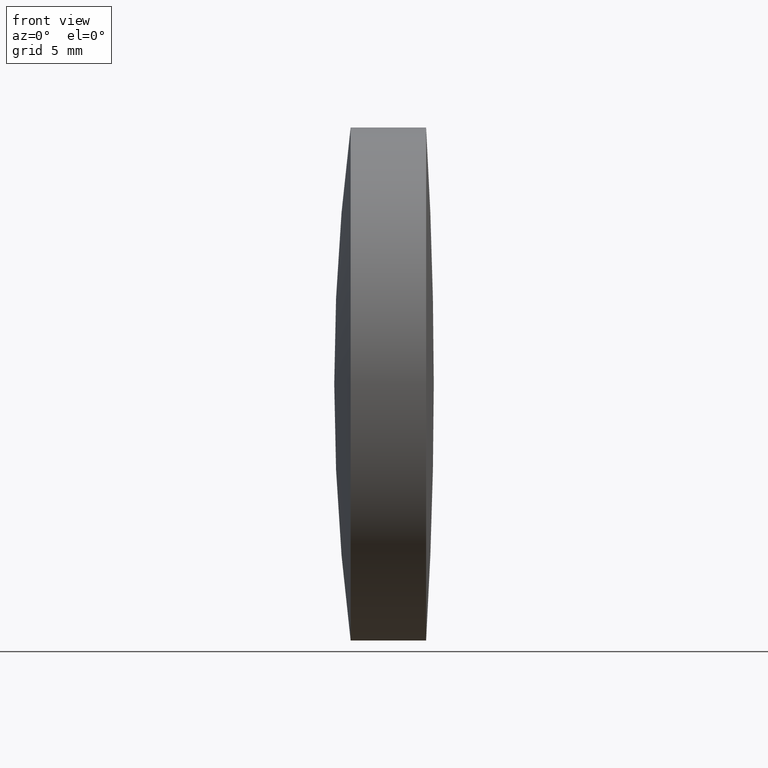
[diagram: clean part render]
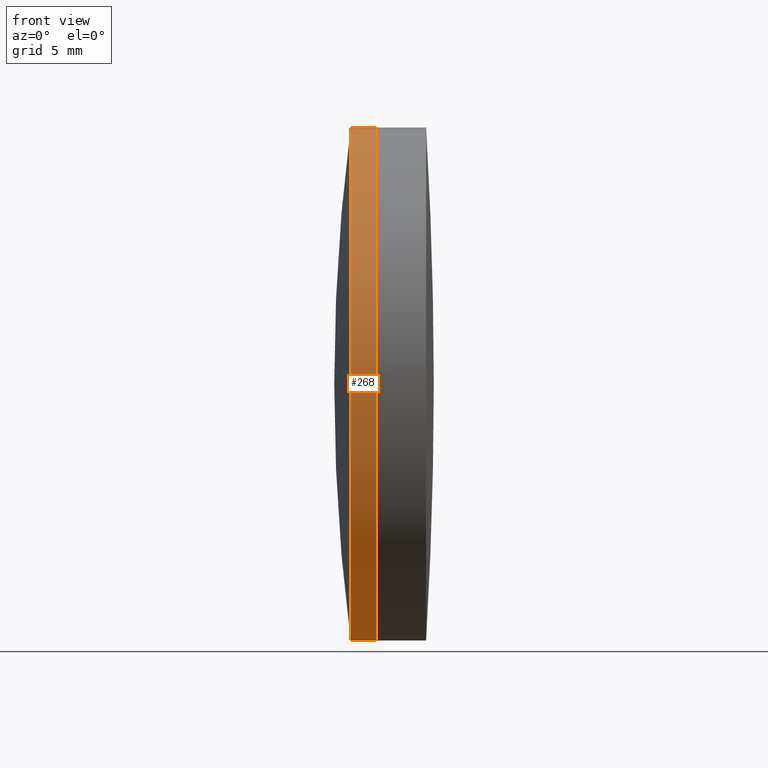
[diagram: same view with one face highlighted and labeled with its STEP entity id]
A machine part, front view. The second image highlights one B-rep face of the part: STEP entity #268.
In plain terms, the highlighted cylindrical surface (partial cylindrical patch) has radius 15.75 mm, axis along (-1, -0, -0).
Its self-contained STEP definition (entity closure, byte-faithful):
#2 = VERTEX_POINT ( 'NONE', #147 ) ;
#12 = LINE ( 'NONE', #311, #223 ) ;
#16 = DIRECTION ( 'NONE',  ( 0.0000000000000000000, 0.0000000000000000000, 1.000000000000000000 ) ) ;
#18 = EDGE_CURVE ( 'NONE', #2, #87, #149, .T. ) ;
#19 = DIRECTION ( 'NONE',  ( -1.000000000000000000, -0.0000000000000000000, -0.0000000000000000000 ) ) ;
#33 = AXIS2_PLACEMENT_3D ( 'NONE', #191, #346, #158 ) ;
#45 = ORIENTED_EDGE ( 'NONE', *, *, #339, .T. ) ;
#67 = DIRECTION ( 'NONE',  ( -1.000000000000000000, -0.0000000000000000000, -0.0000000000000000000 ) ) ;
#72 = ORIENTED_EDGE ( 'NONE', *, *, #137, .T. ) ;
#74 = CIRCLE ( 'NONE', #33, 15.75000000000000000 ) ;
#87 = VERTEX_POINT ( 'NONE', #140 ) ;
#93 = DIRECTION ( 'NONE',  ( -1.000000000000000000, -0.0000000000000000000, -0.0000000000000000000 ) ) ;
#97 = ORIENTED_EDGE ( 'NONE', *, *, #299, .F. ) ;
#101 = CARTESIAN_POINT ( 'NONE',  ( 260.6997343511442300, 0.0000000000000000000, 15.75000000000000000 ) ) ;
#104 = FACE_OUTER_BOUND ( 'NONE', #109, .T. ) ;
#108 = VECTOR ( 'NONE', #67, 1000.000000000000000 ) ;
#109 = EDGE_LOOP ( 'NONE', ( #97, #45, #72, #244 ) ) ;
#114 = VERTEX_POINT ( 'NONE', #101 ) ;
#131 = AXIS2_PLACEMENT_3D ( 'NONE', #209, #19, #16 ) ;
#137 = EDGE_CURVE ( 'NONE', #114, #87, #212, .T. ) ;
#140 = CARTESIAN_POINT ( 'NONE',  ( 259.1360932977123100, -1.928818708657084900E-015, 15.75000000000002800 ) ) ;
#147 = CARTESIAN_POINT ( 'NONE',  ( 259.1360932977123100, 0.0000000000000000000, -15.75000000000002800 ) ) ;
#149 = CIRCLE ( 'NONE', #131, 15.75000000000000000 ) ;
#158 = DIRECTION ( 'NONE',  ( 0.0000000000000000000, 0.0000000000000000000, 1.000000000000000000 ) ) ;
#172 = CARTESIAN_POINT ( 'NONE',  ( 260.6997343511442300, 1.928818708657081300E-015, -15.75000000000000000 ) ) ;
#191 = CARTESIAN_POINT ( 'NONE',  ( 260.6997343511442300, 0.0000000000000000000, 0.0000000000000000000 ) ) ;
#209 = CARTESIAN_POINT ( 'NONE',  ( 259.1360932977123100, 0.0000000000000000000, 0.0000000000000000000 ) ) ;
#210 = CARTESIAN_POINT ( 'NONE',  ( 124.5233095260452400, 0.0000000000000000000, 0.0000000000000000000 ) ) ;
#212 = LINE ( 'NONE', #214, #108 ) ;
#214 = CARTESIAN_POINT ( 'NONE',  ( 124.5233095260452400, 0.0000000000000000000, 15.75000000000000000 ) ) ;
#221 = AXIS2_PLACEMENT_3D ( 'NONE', #210, #317, #228 ) ;
#223 = VECTOR ( 'NONE', #93, 1000.000000000000000 ) ;
#228 = DIRECTION ( 'NONE',  ( 0.0000000000000000000, 0.0000000000000000000, 1.000000000000000000 ) ) ;
#230 = VERTEX_POINT ( 'NONE', #172 ) ;
#244 = ORIENTED_EDGE ( 'NONE', *, *, #18, .F. ) ;
#268 = ADVANCED_FACE ( 'NONE', ( #104 ), #337, .T. ) ;
#299 = EDGE_CURVE ( 'NONE', #230, #2, #12, .T. ) ;
#311 = CARTESIAN_POINT ( 'NONE',  ( 124.5233095260452400, 1.928818708657081300E-015, -15.75000000000000000 ) ) ;
#317 = DIRECTION ( 'NONE',  ( -1.000000000000000000, -0.0000000000000000000, -0.0000000000000000000 ) ) ;
#337 = CYLINDRICAL_SURFACE ( 'NONE', #221, 15.75000000000000000 ) ;
#339 = EDGE_CURVE ( 'NONE', #230, #114, #74, .T. ) ;
#346 = DIRECTION ( 'NONE',  ( -1.000000000000000000, -0.0000000000000000000, -0.0000000000000000000 ) ) ;